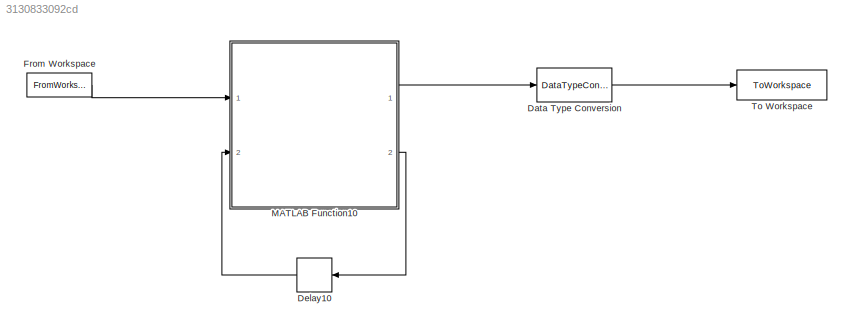
MODEL slx_3130833092cd
KIND model
CONFIG AbsTol = auto
CONFIG EnableMultiTasking = on
CONFIG FixedStep = 1/4000
CONFIG MaxStep = auto
CONFIG MinStep = auto
CONFIG RelTol = 1e-3
CONFIG SampleTimeConstraint = Unconstrained
CONFIG Solver = FixedStepAuto
CONFIG SolverName = FixedStepAuto
CONFIG StartTime = 0.0
CONFIG StopTime = 386.015
BLOCK [DataTypeConversion] Data Type Conversion
  OutDataTypeStr = double
  RndMeth = Floor
  SaturateOnIntegerOverflow = off
BLOCK [Delay] Delay10
  DelayLength = 1
  InitialCondition = 1
  InputPortMap = u0
  NameLocation = top
  Ports = [1, 1]
BLOCK [FromWorkspace] From Workspace
  SampleTime = 1/4000
  VariableName = [t,input]
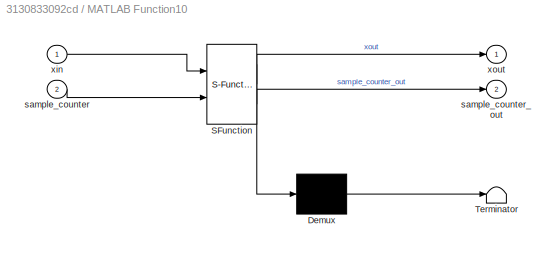
BLOCK [SubSystem] MATLAB Function10
  ErrorFcn = Stateflow.Translate.translate
  PermitHierarchicalResolution = ExplicitOnly
  Ports = [2, 2]
  RequestExecContextInheritance = off
  SFBlockType = MATLAB Function
  TreatAsAtomicUnit = on
BLOCK [Demux] MATLAB Function10/ Demux 
  Outputs = 1
  Ports = [1, 1]
BLOCK [S-Function] MATLAB Function10/ SFunction 
  EnableBusSupport = on
  FunctionName = sf_sfun
  PortCounts = [2 3]
  Ports = [2, 3]
  SFcnIsStateOwnerBlock = off
  SFunctionDeploymentMode = off
  Tag = Stateflow S-Function 10
BLOCK [Terminator] MATLAB Function10/ Terminator 
BLOCK [Inport] MATLAB Function10/sample_counter
  Port = 2
BLOCK [Outport] MATLAB Function10/sample_counter_out
  Port = 2
  VectorParamsAs1DForOutWhenUnconnected = off
BLOCK [Inport] MATLAB Function10/xin
BLOCK [Outport] MATLAB Function10/xout
  VectorParamsAs1DForOutWhenUnconnected = off
BLOCK [ToWorkspace] To Workspace
  FixptAsFi = on
  MaxDataPoints = inf
  Ports = [1]
  SampleTime = -1
  Save2DSignal = 2-D array (concatenate along first dimension)
  VariableName = simout
LINE Data Type Conversion:1 -> To Workspace:1
LINE Delay10:1 -> MATLAB Function10:2
LINE From Workspace:1 -> MATLAB Function10:1
LINE MATLAB Function10:1 -> Data Type Conversion:1
LINE MATLAB Function10:2 -> Delay10:1
CHART MATLAB Function10 states=1 transitions=1
  STATE_LABEL 'eML_blk_kernel()'
  STATE_LABEL 'SCRIPT:\nfunction [xout,sample_counter_out] = pitch24(xin,sample_counter)\n\npersistent frame;\npersistent frame_buff;\npersistent frame_cnt;\npersistent outputVector;\npersistent pitchPrev;\npersistent phaseCumulative;\npersistent previousPhase;\npersistent all;\n\n% Window size\nwinSize = 128*2;\n% Space between windows\nhop = 8*2;\n% Pitch scaling factor\nalpha = 2^(24/12);\n% Intermediate constants\nhopOut = rou...<+2471ch>'
CHART  states=0 transitions=0
